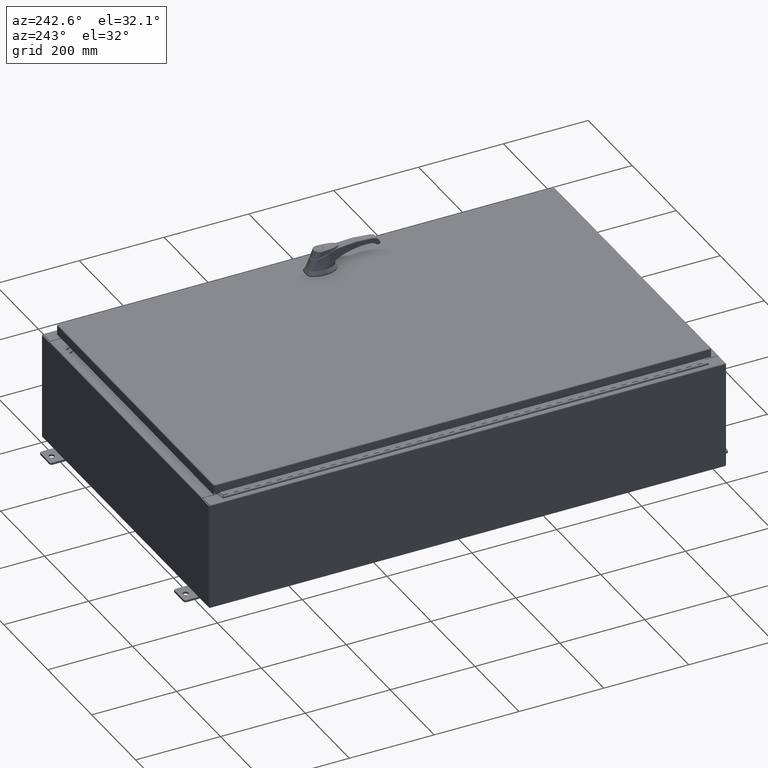
[diagram: clean part render]
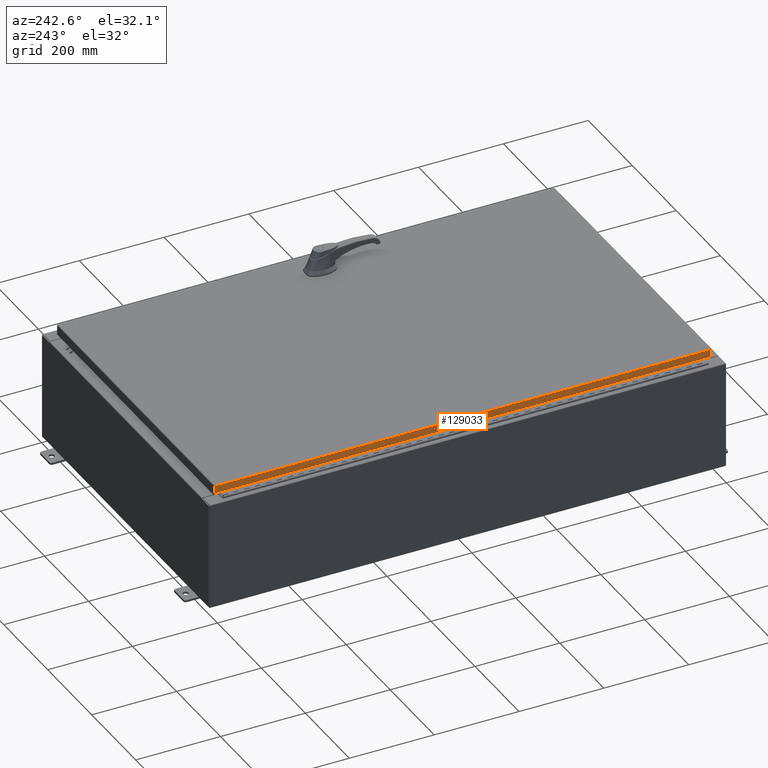
[diagram: same view with one face highlighted and labeled with its STEP entity id]
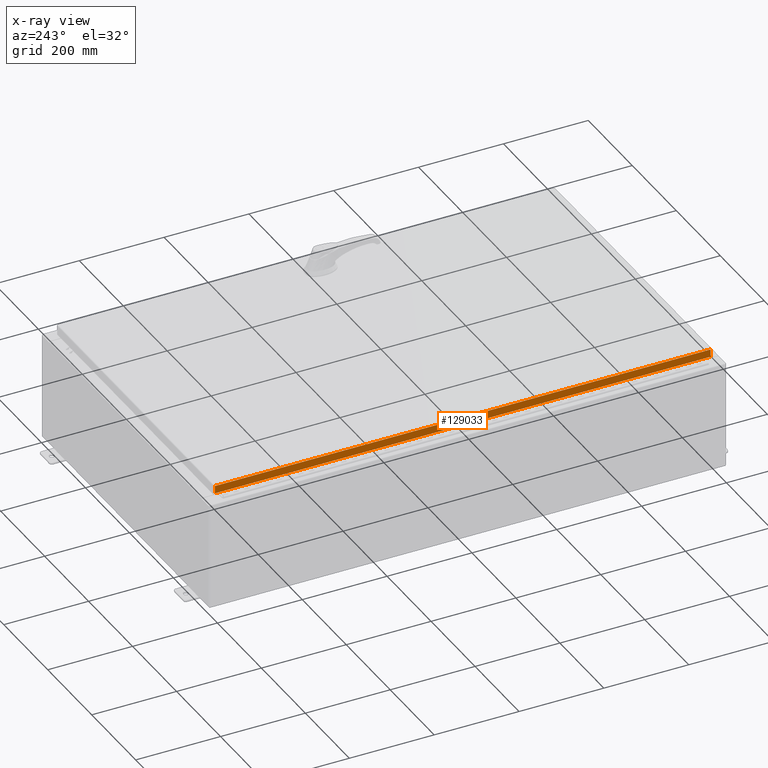
[diagram: x-ray of the same camera — body ghosted, the highlighted face saturated]
A machine part, auxiliary view. The second image highlights one B-rep face of the part: STEP entity #129033.
The next image is the same camera in x-ray: the body ghosted, the highlighted face saturated — about 0% of this face is hidden behind the body in this view.
In plain terms, the highlighted planar face has unit normal (1, 0, -0).
Its self-contained STEP definition (entity closure, byte-faithful):
#1806 = DIRECTION ( 'NONE',  ( 1.000000000000000000, 3.678869116736826000E-031, -3.034122441942816500E-015 ) ) ;
#7528 = CARTESIAN_POINT ( 'NONE',  ( -14.07799999999999800, -23.00515786437627200, -0.08770000000000007000 ) ) ;
#9343 = VECTOR ( 'NONE', #48045, 39.37007874015748100 ) ;
#11265 = EDGE_CURVE ( 'NONE', #44737, #111592, #33452, .T. ) ;
#11665 = CARTESIAN_POINT ( 'NONE',  ( -14.07799999999999800, -5.179111942542102700E-030, 4.297518939368254200E-014 ) ) ;
#13045 = CARTESIAN_POINT ( 'NONE',  ( -14.07799999999999900, -23.00515786437626900, -0.7949999999999996000 ) ) ;
#30495 = CARTESIAN_POINT ( 'NONE',  ( -14.07799999999999800, -23.09400000000000100, -0.08770000000000004200 ) ) ;
#33452 = LINE ( 'NONE', #94708, #9343 ) ;
#33874 = ORIENTED_EDGE ( 'NONE', *, *, #107145, .F. ) ;
#34339 = LINE ( 'NONE', #67360, #116485 ) ;
#39752 = ORIENTED_EDGE ( 'NONE', *, *, #121469, .F. ) ;
#42629 = PLANE ( 'NONE',  #81105 ) ;
#44737 = VERTEX_POINT ( 'NONE', #7528 ) ;
#48045 = DIRECTION ( 'NONE',  ( -3.034122441942816500E-015, 6.982962677686267500E-015, -1.000000000000000000 ) ) ;
#51087 = LINE ( 'NONE', #75154, #129987 ) ;
#56970 = DIRECTION ( 'NONE',  ( -0.0000000000000000000, 1.000000000000000000, 1.212498568245375000E-016 ) ) ;
#59886 = LINE ( 'NONE', #30495, #84137 ) ;
#67360 = CARTESIAN_POINT ( 'NONE',  ( -14.07799999999999900, -23.09400000000000100, -0.7949999999999997100 ) ) ;
#70234 = ORIENTED_EDGE ( 'NONE', *, *, #131669, .T. ) ;
#73804 = DIRECTION ( 'NONE',  ( -3.034122441942816500E-015, 0.0000000000000000000, -1.000000000000000000 ) ) ;
#75154 = CARTESIAN_POINT ( 'NONE',  ( -14.07799999999999800, 23.00515786437627200, 2.036193481549027800E-013 ) ) ;
#77763 = CARTESIAN_POINT ( 'NONE',  ( -14.07799999999999900, 23.00515786437627600, -0.7949999999999941600 ) ) ;
#81105 = AXIS2_PLACEMENT_3D ( 'NONE', #11665, #1806, #73804 ) ;
#81652 = VERTEX_POINT ( 'NONE', #85541 ) ;
#84137 = VECTOR ( 'NONE', #92186, 39.37007874015748100 ) ;
#85484 = DIRECTION ( 'NONE',  ( -3.034122441942816500E-015, 6.982962677686267500E-015, -1.000000000000000000 ) ) ;
#85541 = CARTESIAN_POINT ( 'NONE',  ( -14.07799999999999800, 23.00515786437627200, -0.08770000000000004200 ) ) ;
#92186 = DIRECTION ( 'NONE',  ( 3.678869116736826000E-031, -1.000000000000000000, -1.084461527917214800E-045 ) ) ;
#94708 = CARTESIAN_POINT ( 'NONE',  ( -14.07799999999999800, -23.00515786437627200, -0.07469999999999976700 ) ) ;
#96537 = EDGE_LOOP ( 'NONE', ( #33874, #70234, #39752, #106845 ) ) ;
#98907 = VERTEX_POINT ( 'NONE', #77763 ) ;
#106845 = ORIENTED_EDGE ( 'NONE', *, *, #11265, .F. ) ;
#107145 = EDGE_CURVE ( 'NONE', #81652, #44737, #59886, .T. ) ;
#111592 = VERTEX_POINT ( 'NONE', #13045 ) ;
#116485 = VECTOR ( 'NONE', #56970, 39.37007874015748100 ) ;
#121469 = EDGE_CURVE ( 'NONE', #111592, #98907, #34339, .T. ) ;
#126685 = FACE_OUTER_BOUND ( 'NONE', #96537, .T. ) ;
#129033 = ADVANCED_FACE ( 'NONE', ( #126685 ), #42629, .F. ) ;
#129987 = VECTOR ( 'NONE', #85484, 39.37007874015748100 ) ;
#131669 = EDGE_CURVE ( 'NONE', #81652, #98907, #51087, .T. ) ;